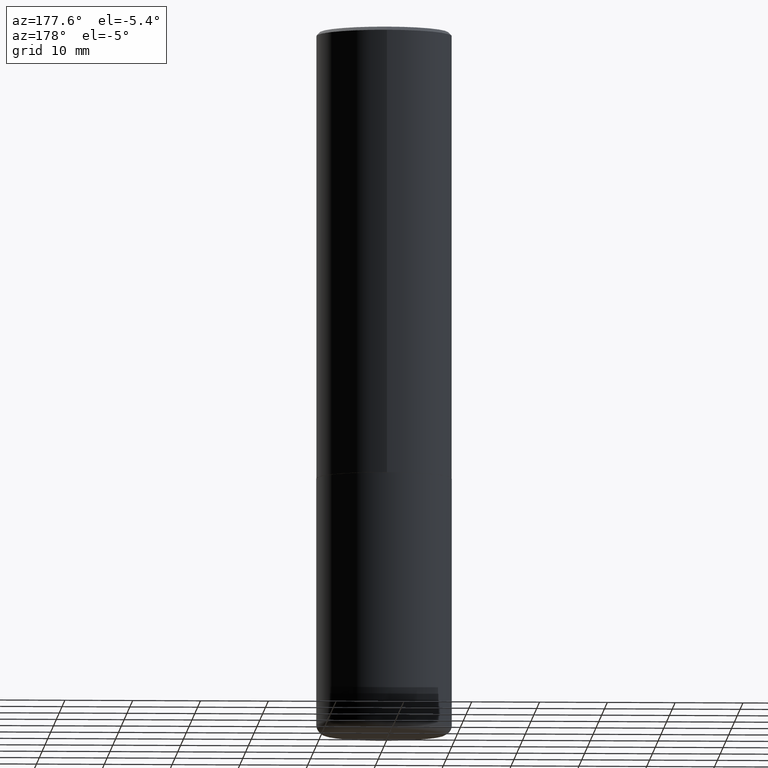
[diagram: clean part render]
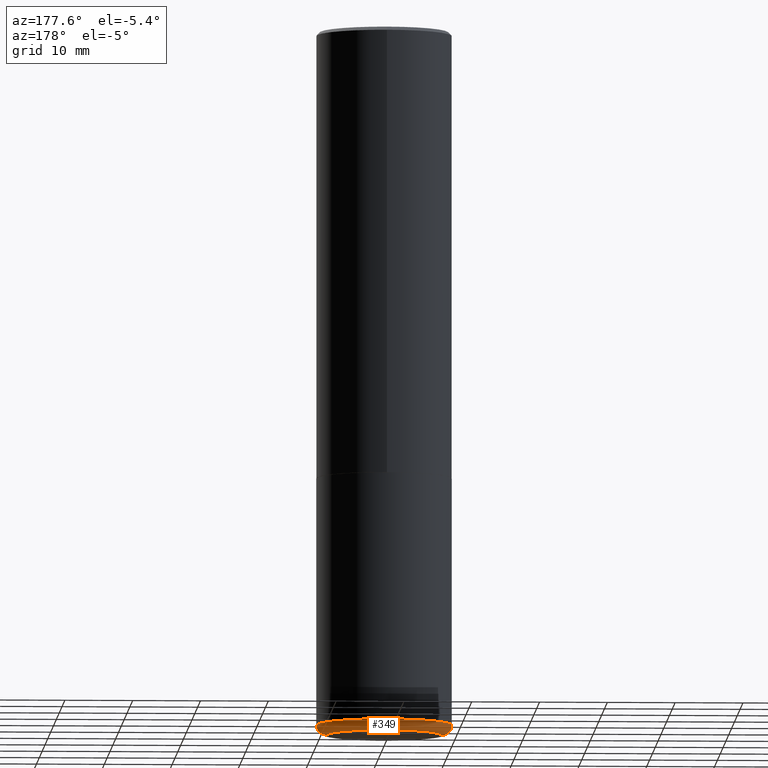
[diagram: same view with one face highlighted and labeled with its STEP entity id]
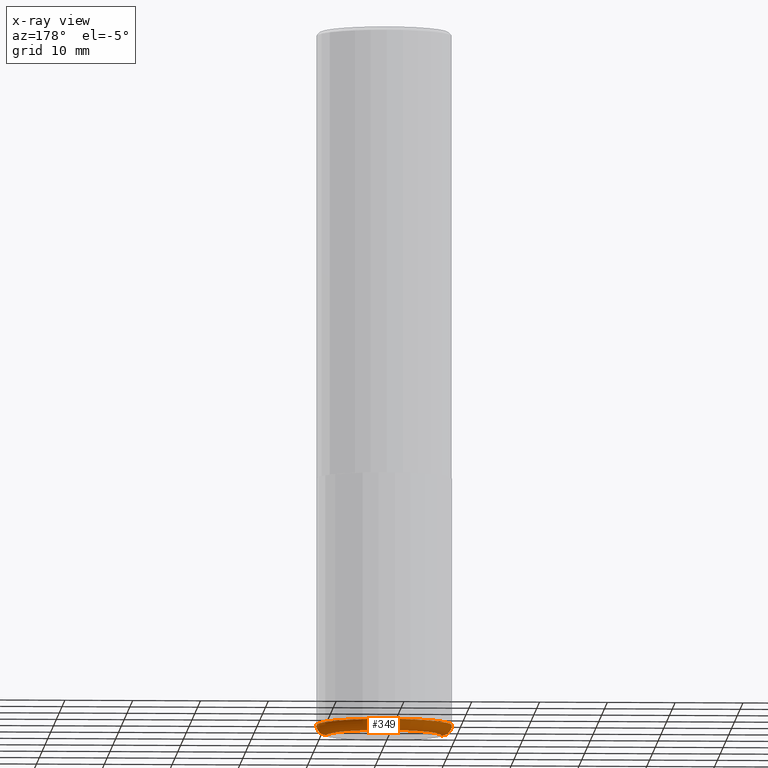
[diagram: x-ray of the same camera — body ghosted, the highlighted face saturated]
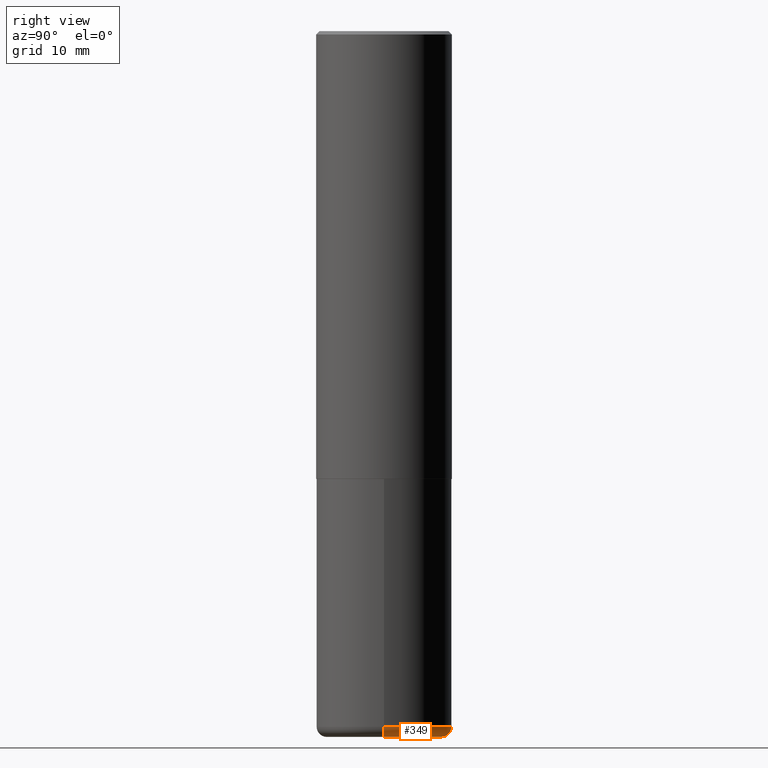
[diagram: same view with one face highlighted and labeled with its STEP entity id]
A machine part, auxiliary view. The second image highlights one B-rep face of the part: STEP entity #349.
The next image is the same camera in x-ray: the body ghosted, the highlighted face saturated — about 0% of this face is hidden behind the body in this view.
A second angle (right view) of the same face is appended — the face is thin or edge-on in the first view.
In plain terms, the highlighted toroidal blend (fillet) surface has major radius 8.4988 mm and minor (blend) radius 1.5011 mm.
Its self-contained STEP definition (entity closure, byte-faithful):
#9 = CARTESIAN_POINT ( 'NONE',  ( 0.3346000000000000085, -1.663236965384708707E-14, -4.094500000000000028 ) ) ;
#10 = DIRECTION ( 'NONE',  ( 1.000000000000000000, -6.982962677686269866E-15, 0.000000000000000000 ) ) ;
#12 = DIRECTION ( 'NONE',  ( 1.000000000000000000, -6.982962677686271444E-15, 0.000000000000000000 ) ) ;
#45 = DIRECTION ( 'NONE',  ( 1.000000000000000000, -6.982962677686269077E-15, 4.883557194083114022E-29 ) ) ;
#55 = CARTESIAN_POINT ( 'NONE',  ( -0.3346000000000000085, -1.171204780091433423E-14, -4.035400000000000098 ) ) ;
#57 = CARTESIAN_POINT ( 'NONE',  ( 9.868444820479501934E-29, -1.408952379476762952E-14, -4.035400000000000098 ) ) ;
#58 = EDGE_CURVE ( 'NONE', #65, #176, #380, .T. ) ;
#65 = VERTEX_POINT ( 'NONE', #117 ) ;
#73 = DIRECTION ( 'NONE',  ( -6.982962677686266711E-15, -1.000000000000000000, 3.491481338843145583E-15 ) ) ;
#80 = AXIS2_PLACEMENT_3D ( 'NONE', #301, #73, #12 ) ;
#102 = AXIS2_PLACEMENT_3D ( 'NONE', #55, #175, #345 ) ;
#103 = DIRECTION ( 'NONE',  ( -2.445468806185136597E-29, 3.491481338843145583E-15, 1.000000000000000000 ) ) ;
#104 = EDGE_CURVE ( 'NONE', #387, #176, #216, .T. ) ;
#117 = CARTESIAN_POINT ( 'NONE',  ( -0.3346000000000000085, -1.160525569606004165E-14, -4.094500000000000028 ) ) ;
#132 = CARTESIAN_POINT ( 'NONE',  ( 0.3936999999999999389, -1.683871620097271431E-14, -4.035400000000000098 ) ) ;
#138 = FACE_OUTER_BOUND ( 'NONE', #241, .T. ) ;
#143 = DIRECTION ( 'NONE',  ( -2.445468806185136597E-29, 3.491481338843145583E-15, 1.000000000000000000 ) ) ;
#156 = TOROIDAL_SURFACE ( 'NONE', #331, 0.3346000000000000085, 0.05909999999999995812 ) ;
#175 = DIRECTION ( 'NONE',  ( 7.105427357601001859E-15, 1.000000000000000000, -3.491481338843145583E-15 ) ) ;
#176 = VERTEX_POINT ( 'NONE', #177 ) ;
#177 = CARTESIAN_POINT ( 'NONE',  ( -0.3936999999999999389, -1.129211704408011394E-14, -4.035400000000000098 ) ) ;
#203 = DIRECTION ( 'NONE',  ( -2.445468806185136597E-29, 3.491481338843145583E-15, 1.000000000000000000 ) ) ;
#216 = CIRCLE ( 'NONE', #343, 0.3937000000000000499 ) ;
#233 = CARTESIAN_POINT ( 'NONE',  ( 1.001297202692504215E-28, -1.429587034189326149E-14, -4.094500000000000028 ) ) ;
#241 = EDGE_LOOP ( 'NONE', ( #369, #367, #293, #256 ) ) ;
#251 = AXIS2_PLACEMENT_3D ( 'NONE', #233, #103, #10 ) ;
#255 = EDGE_CURVE ( 'NONE', #398, #65, #303, .T. ) ;
#256 = ORIENTED_EDGE ( 'NONE', *, *, #339, .F. ) ;
#293 = ORIENTED_EDGE ( 'NONE', *, *, #104, .F. ) ;
#301 = CARTESIAN_POINT ( 'NONE',  ( 0.3346000000000000085, -1.642602310672145667E-14, -4.035400000000000098 ) ) ;
#303 = CIRCLE ( 'NONE', #251, 0.3346000000000000085 ) ;
#331 = AXIS2_PLACEMENT_3D ( 'NONE', #332, #203, #45 ) ;
#332 = CARTESIAN_POINT ( 'NONE',  ( 9.868444820479501934E-29, -1.408952379476762952E-14, -4.035400000000000098 ) ) ;
#339 = EDGE_CURVE ( 'NONE', #398, #387, #418, .T. ) ;
#343 = AXIS2_PLACEMENT_3D ( 'NONE', #57, #143, #373 ) ;
#345 = DIRECTION ( 'NONE',  ( -1.000000000000000000, 7.105427357601001859E-15, 0.000000000000000000 ) ) ;
#349 = ADVANCED_FACE ( 'NONE', ( #138 ), #156, .T. ) ;
#367 = ORIENTED_EDGE ( 'NONE', *, *, #58, .T. ) ;
#369 = ORIENTED_EDGE ( 'NONE', *, *, #255, .T. ) ;
#373 = DIRECTION ( 'NONE',  ( 1.000000000000000000, -6.982962677686267499E-15, 0.000000000000000000 ) ) ;
#380 = CIRCLE ( 'NONE', #102, 0.05909999999999992343 ) ;
#387 = VERTEX_POINT ( 'NONE', #132 ) ;
#398 = VERTEX_POINT ( 'NONE', #9 ) ;
#418 = CIRCLE ( 'NONE', #80, 0.05909999999999992343 ) ;